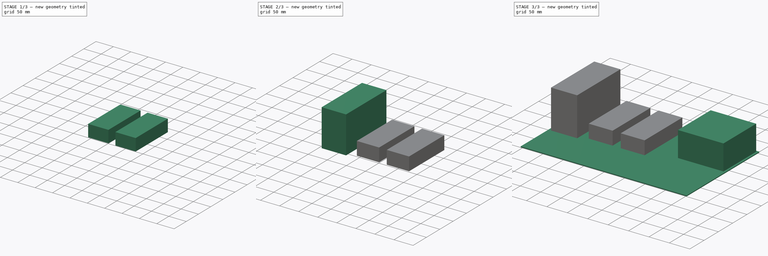
[diagram: build sequence overview — one tinted view per stage of 3, left to right]
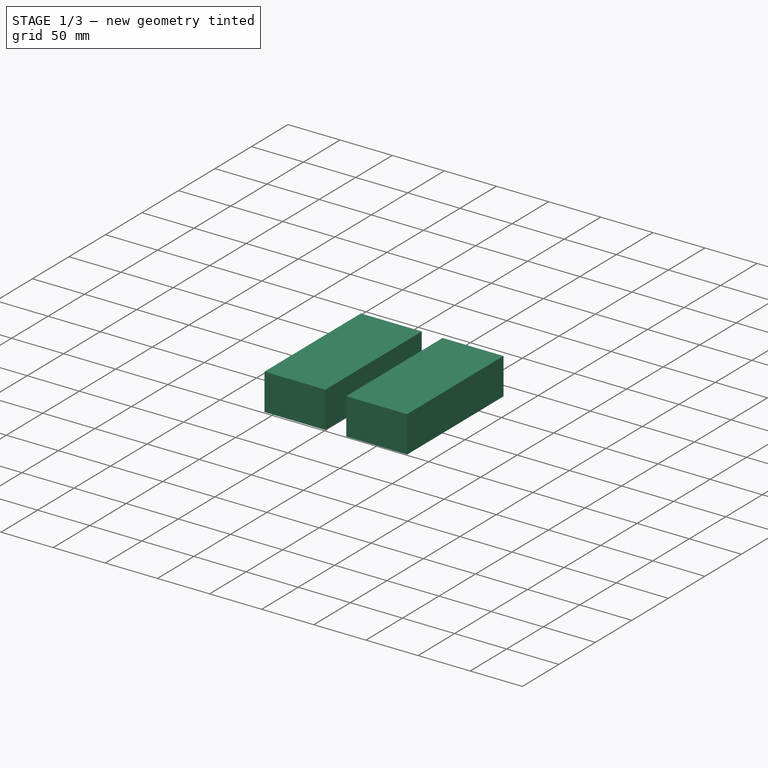
[diagram: stage 1 of 3 — iso view after this stage's code; geometry added in this stage tinted green]
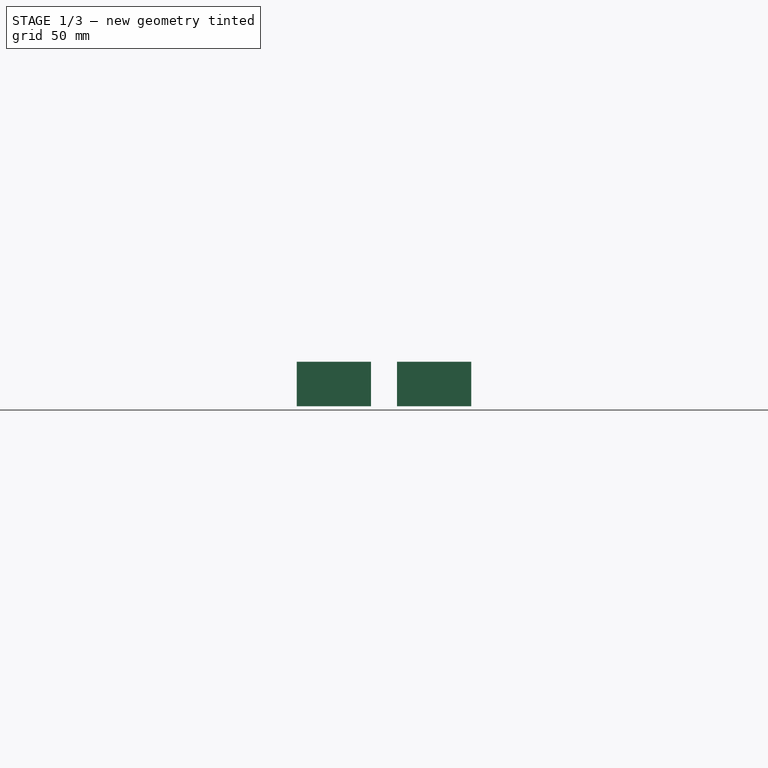
[diagram: stage 1 of 3 — front view after this stage's code; geometry added in this stage tinted green]
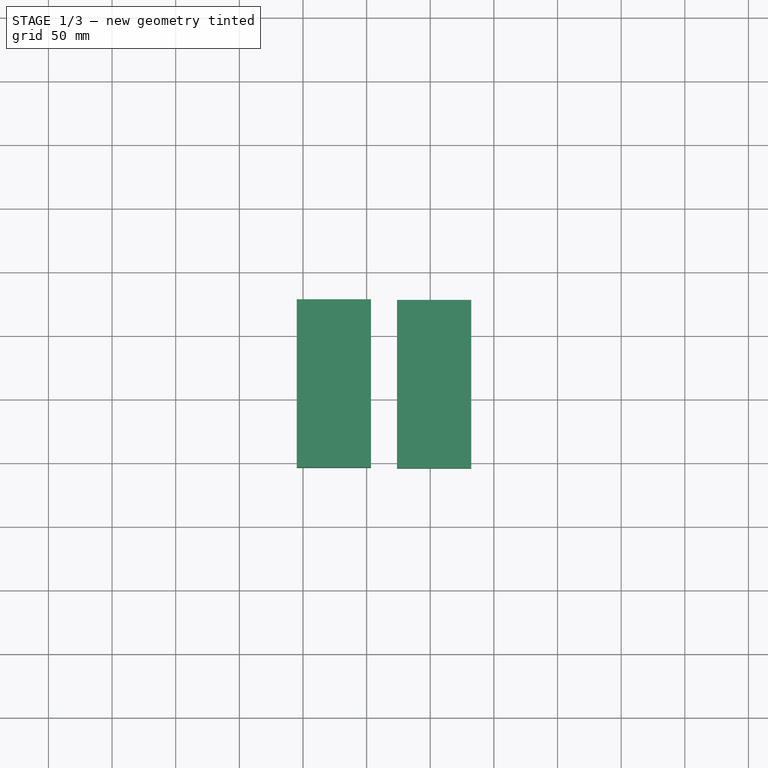
[diagram: stage 1 of 3 — top view after this stage's code; geometry added in this stage tinted green]
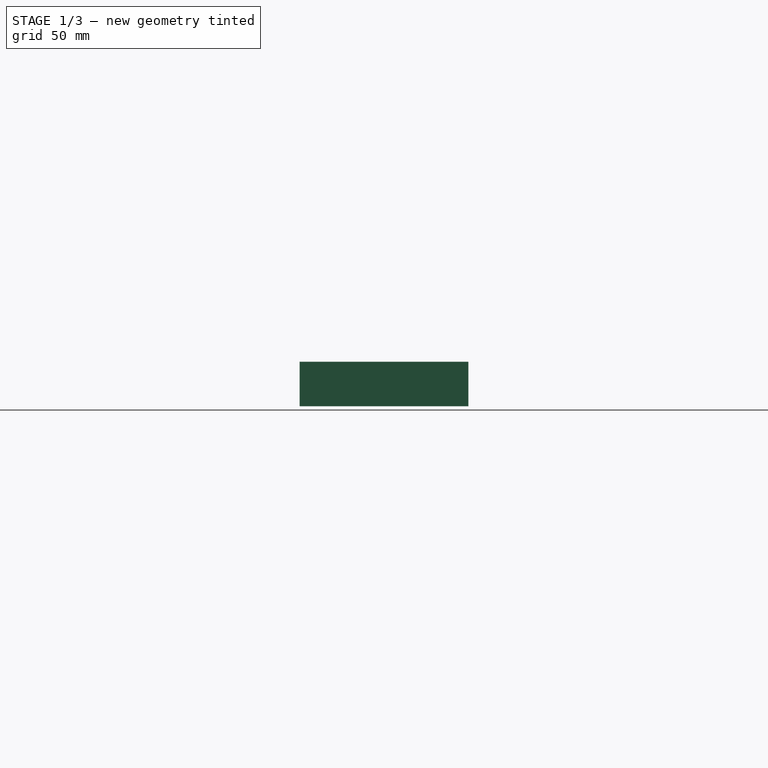
[diagram: stage 1 of 3 — right view after this stage's code; geometry added in this stage tinted green]
FCSTD DOCUMENT  (FreeCAD 0.15R4671 (Git))
Label: cotsmbcBaseInternals
License: All rights reserved
LicenseURL: http://en.wikipedia.org/wiki/All_rights_reserved
objects: Sketcher::SketchObject×5, PartDesign::Pad×5
note: 15 computed .brp shape members not serialized (recipe doc carries the construction recipe); baked Part::Feature solids carry a one-line shape summary decoded from their .brp

FEATURE [Sketcher::SketchObject] Sketch003
  sketch-geometry (4):
    g0: LineSegment StartX=-54.9481 StartY=78.5757 StartZ=0 EndX=3.47192 EndY=78.5757 EndZ=0
    g1: LineSegment StartX=3.47192 StartY=78.5757 StartZ=0 EndX=3.47192 EndY=-53.5043 EndZ=0
    g2: LineSegment StartX=3.47192 StartY=-53.5043 StartZ=0 EndX=-54.9481 EndY=-53.5043 EndZ=0
    g3: LineSegment StartX=-54.9481 StartY=-53.5043 StartZ=0 EndX=-54.9481 EndY=78.5757 EndZ=0
  constraints (12):
    c: Coincident(g0,g1)
    c: Coincident(g1,g2)
    c: Coincident(g2,g3)
    c: Coincident(g3,g0)
    c: Horizontal(g0)
    c: Horizontal(g2)
    c: Vertical(g1)
    c: Vertical(g3)
    c: Equal(g1,g3)
    c: Equal(g2,g0)
    c: DistanceX(g2) = -58.42
    c: DistanceY(g1) = -132.08
FEATURE [Sketcher::SketchObject] Sketch004
  sketch-geometry (4):
    g0: LineSegment StartX=23.8257 StartY=78.0393 StartZ=0 EndX=82.2457 EndY=78.0393 EndZ=0
    g1: LineSegment StartX=82.2457 StartY=78.0393 StartZ=0 EndX=82.2457 EndY=-54.0407 EndZ=0
    g2: LineSegment StartX=82.2457 StartY=-54.0407 StartZ=0 EndX=23.8257 EndY=-54.0407 EndZ=0
    g3: LineSegment StartX=23.8257 StartY=-54.0407 StartZ=0 EndX=23.8257 EndY=78.0393 EndZ=0
  constraints (12):
    c: Coincident(g0,g1)
    c: Coincident(g1,g2)
    c: Coincident(g2,g3)
    c: Coincident(g3,g0)
    c: Horizontal(g0)
    c: Horizontal(g2)
    c: Vertical(g1)
    c: Vertical(g3)
    c: Equal(g1,g3)
    c: Equal(g2,g0)
    c: DistanceX(g2) = -58.42
    c: DistanceY(g1) = -132.08
FEATURE [PartDesign::Pad] Pad003
  Length = 35.02
  Length2 = 100
  Sketch = -> Sketch003
  Type = 0
FEATURE [PartDesign::Pad] Pad004
  Length = 35.02
  Length2 = 100
  Sketch = -> Sketch004
  Type = 0
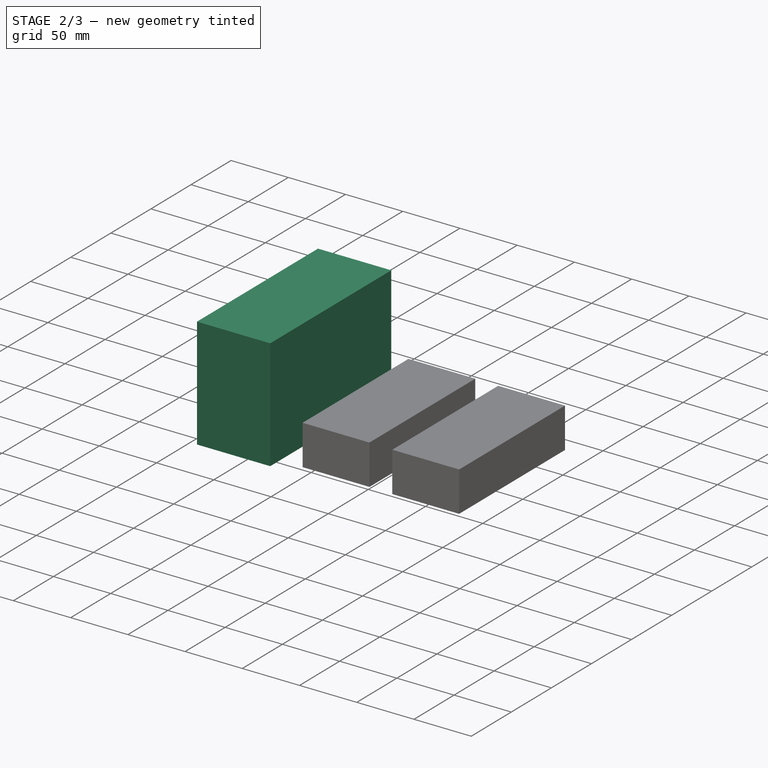
[diagram: stage 2 of 3 — iso view after this stage's code; geometry added in this stage tinted green]
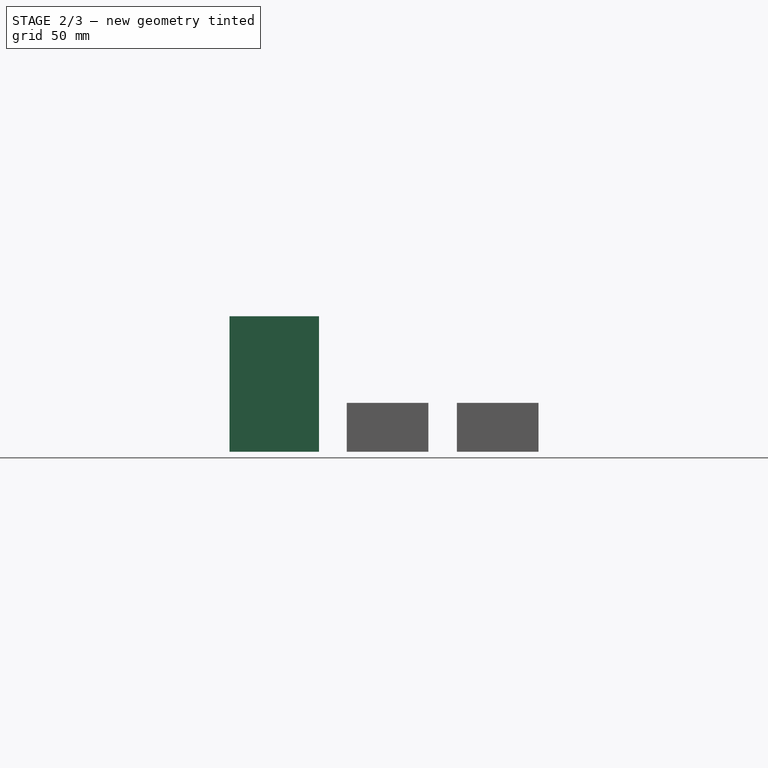
[diagram: stage 2 of 3 — front view after this stage's code; geometry added in this stage tinted green]
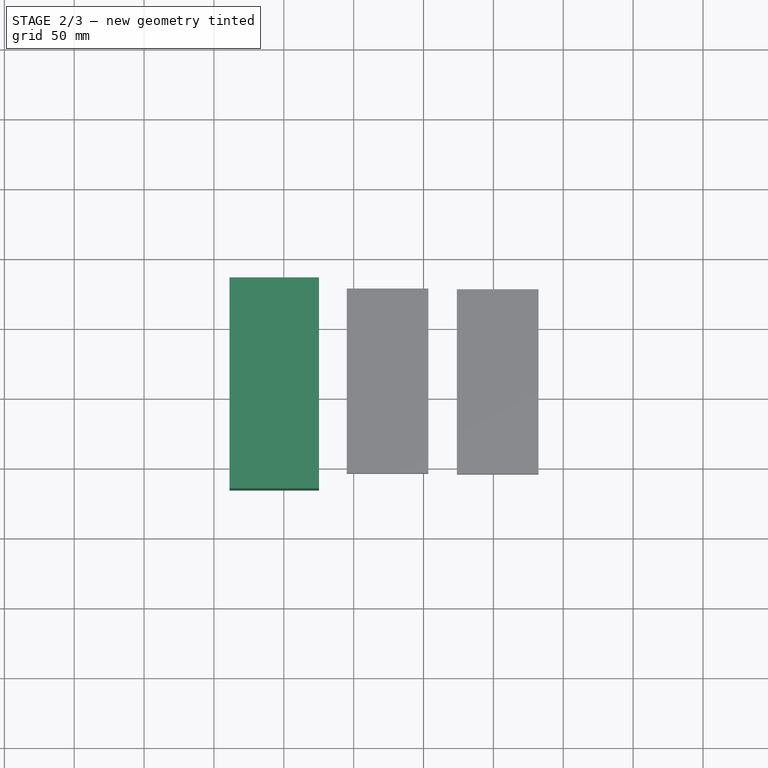
[diagram: stage 2 of 3 — top view after this stage's code; geometry added in this stage tinted green]
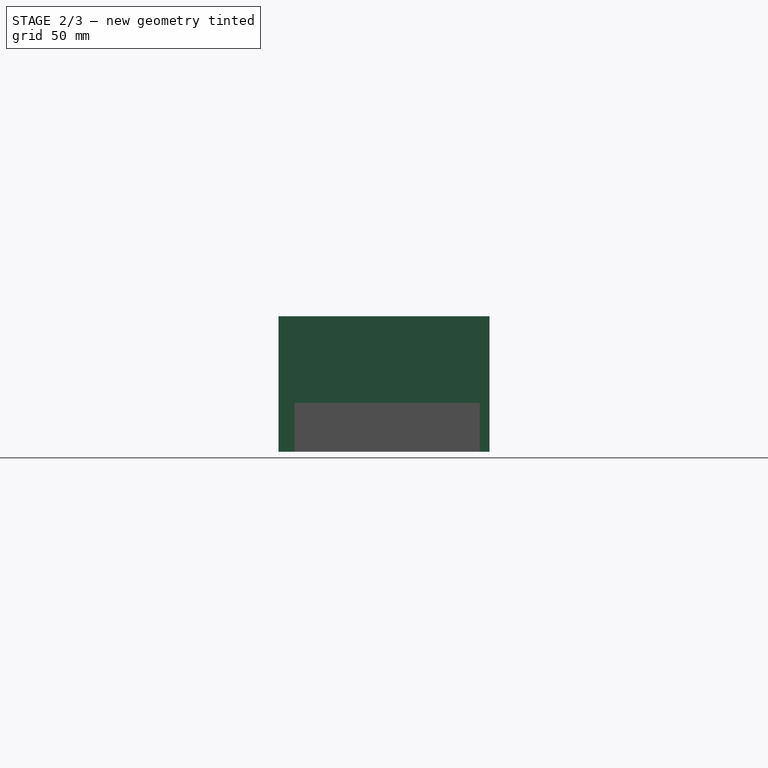
[diagram: stage 2 of 3 — right view after this stage's code; geometry added in this stage tinted green]
FEATURE [Sketcher::SketchObject] Sketch002
  sketch-geometry (4):
    g0: LineSegment StartX=-138.824 StartY=85.5232 StartZ=0 EndX=-74.8238 EndY=85.5232 EndZ=0
    g1: LineSegment StartX=-74.8238 StartY=85.5232 StartZ=0 EndX=-74.8238 EndY=-65.4768 EndZ=0
    g2: LineSegment StartX=-74.8238 StartY=-65.4768 StartZ=0 EndX=-138.824 EndY=-65.4768 EndZ=0
    g3: LineSegment StartX=-138.824 StartY=-65.4768 StartZ=0 EndX=-138.824 EndY=85.5232 EndZ=0
  constraints (12):
    c: Coincident(g0,g1)
    c: Coincident(g1,g2)
    c: Coincident(g2,g3)
    c: Coincident(g3,g0)
    c: Horizontal(g0)
    c: Horizontal(g2)
    c: Vertical(g1)
    c: Vertical(g3)
    c: Equal(g3,g1)
    c: Equal(g0,g2)
    c: DistanceY(g3) = 151
    c: DistanceX(g0) = 64
FEATURE [PartDesign::Pad] Pad002
  Length = 97
  Length2 = 100
  Sketch = -> Sketch002
  Type = 0
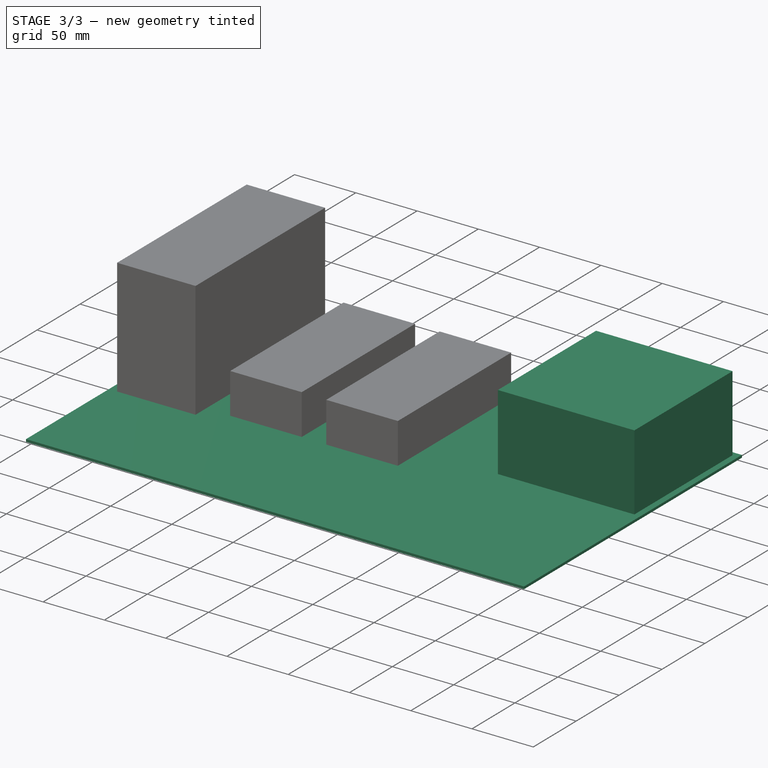
[diagram: stage 3 of 3 — iso view after this stage's code; geometry added in this stage tinted green]
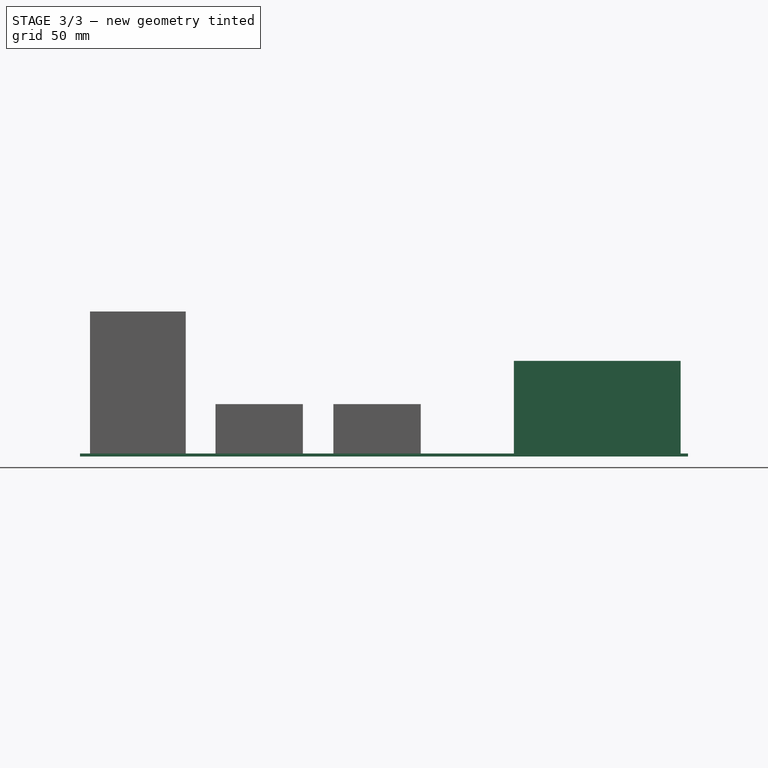
[diagram: stage 3 of 3 — front view after this stage's code; geometry added in this stage tinted green]
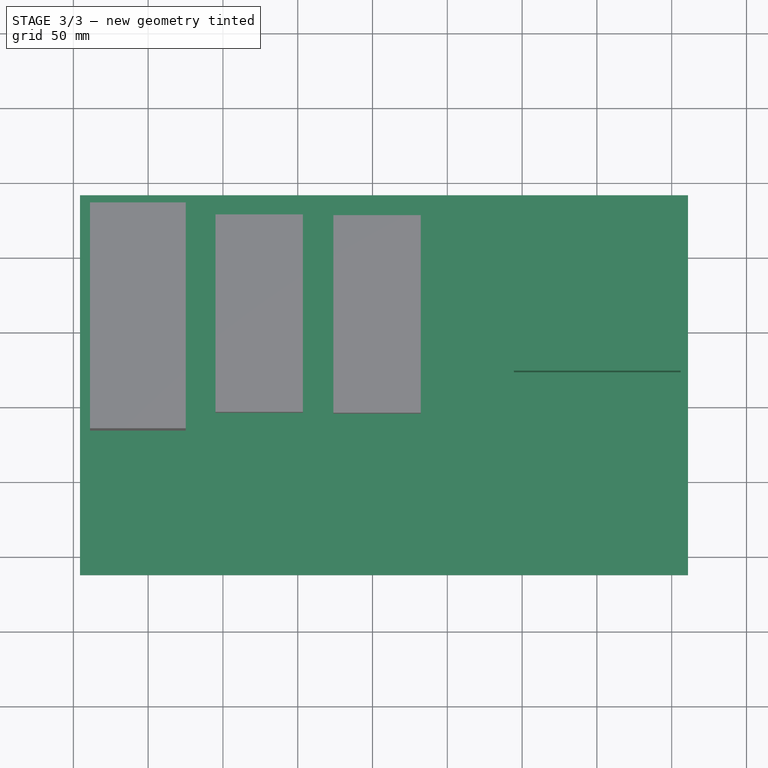
[diagram: stage 3 of 3 — top view after this stage's code; geometry added in this stage tinted green]
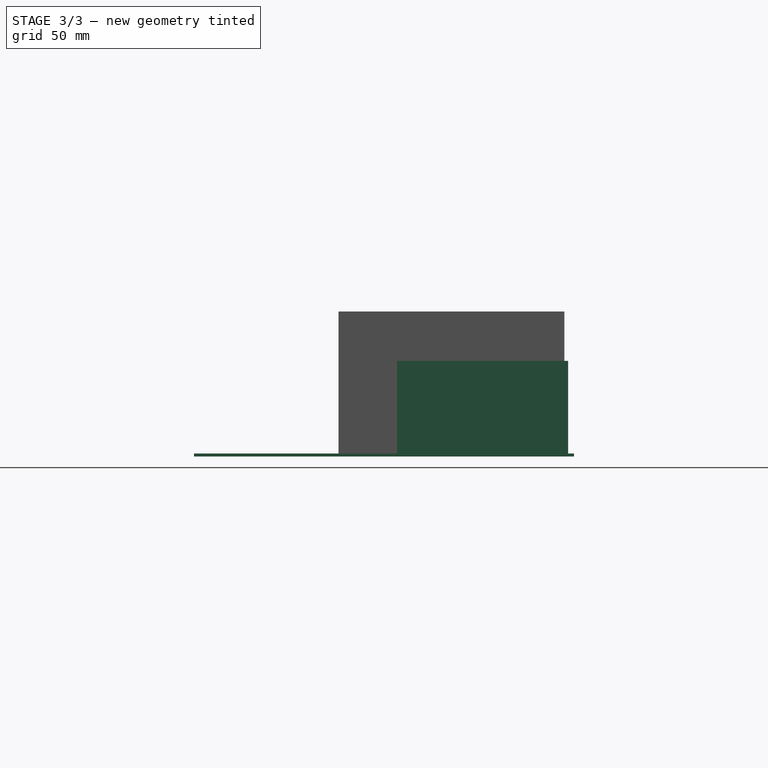
[diagram: stage 3 of 3 — right view after this stage's code; geometry added in this stage tinted green]
FEATURE [Sketcher::SketchObject] Sketch
  sketch-geometry (4):
    g0: LineSegment StartX=-145.525 StartY=91.926 StartZ=0 EndX=260.875 EndY=91.926 EndZ=0
    g1: LineSegment StartX=260.875 StartY=91.926 StartZ=0 EndX=260.875 EndY=-162.074 EndZ=0
    g2: LineSegment StartX=260.875 StartY=-162.074 StartZ=0 EndX=-145.525 EndY=-162.074 EndZ=0
    g3: LineSegment StartX=-145.525 StartY=-162.074 StartZ=0 EndX=-145.525 EndY=91.926 EndZ=0
  constraints (12):
    c: Coincident(g0,g1)
    c: Coincident(g1,g2)
    c: Coincident(g2,g3)
    c: Coincident(g3,g0)
    c: Horizontal(g0)
    c: Horizontal(g2)
    c: Vertical(g1)
    c: Vertical(g3)
    c: Equal(g0,g2)
    c: Equal(g1,g3)
    c: DistanceX(g0) = 406.4
    c: DistanceY(g1) = -254
FEATURE [PartDesign::Pad] Pad
  Length = 2
  Length2 = 100
  Sketch = -> Sketch
  Type = 0
FEATURE [Sketcher::SketchObject] Sketch001
  sketch-geometry (4):
    g0: LineSegment StartX=144.53 StartY=88.0152 StartZ=0 EndX=255.93 EndY=88.0152 EndZ=0
    g1: LineSegment StartX=255.93 StartY=88.0152 StartZ=0 EndX=255.93 EndY=-26.3848 EndZ=0
    g2: LineSegment StartX=255.93 StartY=-26.3848 StartZ=0 EndX=144.53 EndY=-26.3848 EndZ=0
    g3: LineSegment StartX=144.53 StartY=-26.3848 StartZ=0 EndX=144.53 EndY=88.0152 EndZ=0
  constraints (12):
    c: Coincident(g0,g1)
    c: Coincident(g1,g2)
    c: Coincident(g2,g3)
    c: Coincident(g3,g0)
    c: Horizontal(g0)
    c: Horizontal(g2)
    c: Vertical(g1)
    c: Vertical(g3)
    c: Equal(g2,g0)
    c: Equal(g1,g3)
    c: DistanceY(g1) = -114.4
    c: DistanceX(g2) = -111.4
FEATURE [PartDesign::Pad] Pad001
  Length = 64
  Length2 = 100
  Sketch = -> Sketch001
  Type = 0
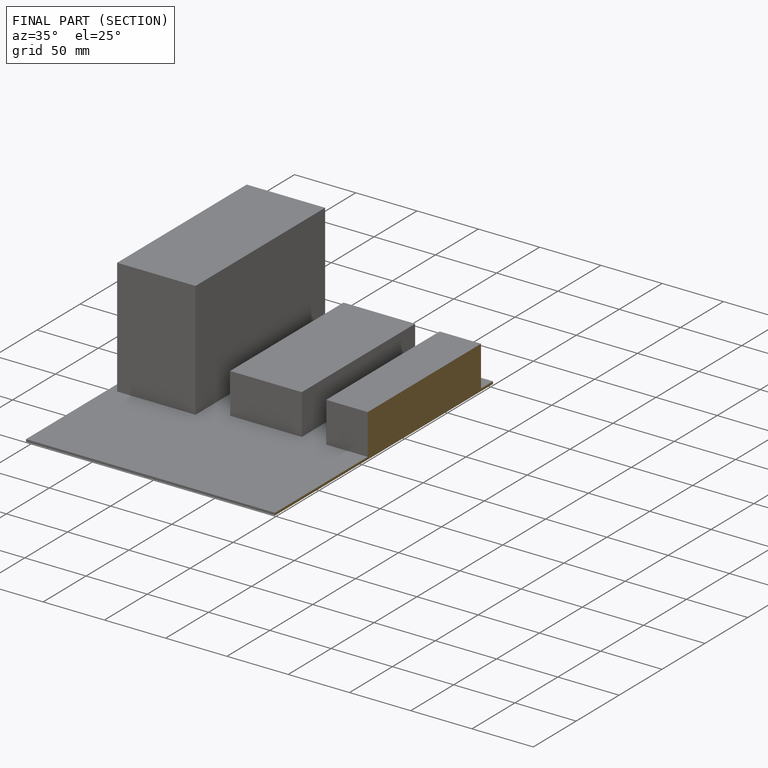
[diagram: finished part — half-section view (interior)]
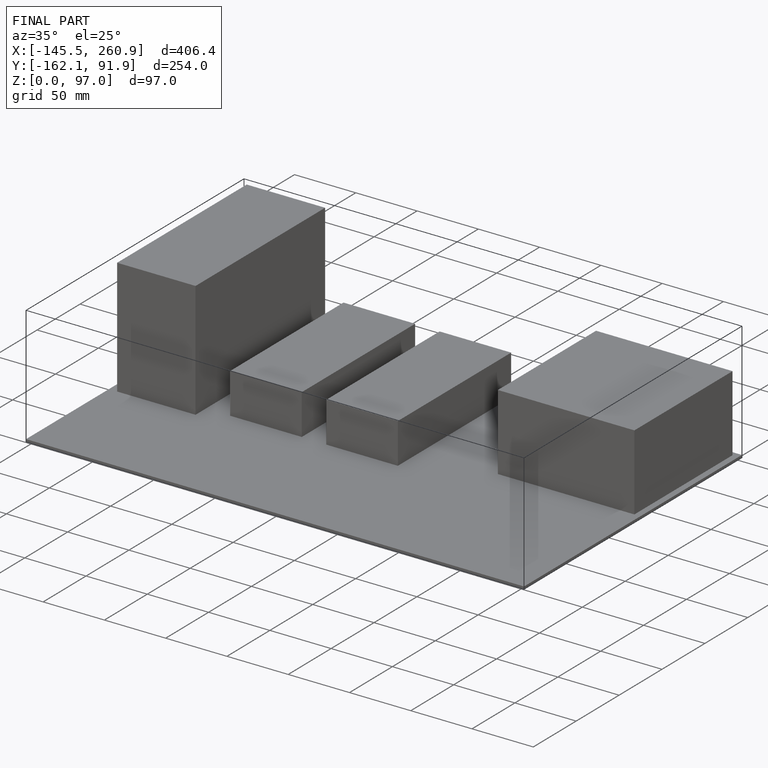
[diagram: finished part — iso view with bounding-box wireframe]
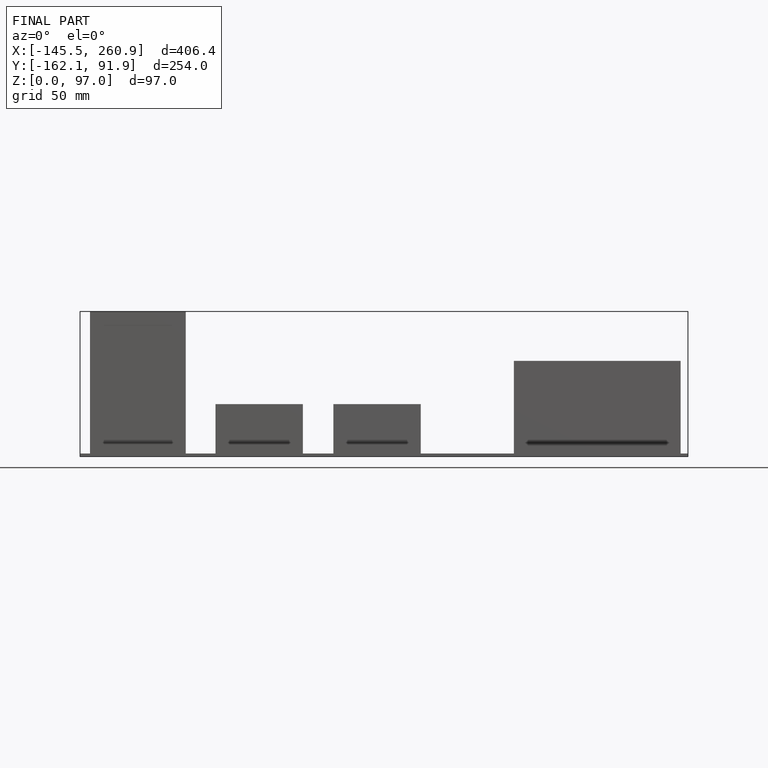
[diagram: finished part — front view with bounding-box wireframe]
